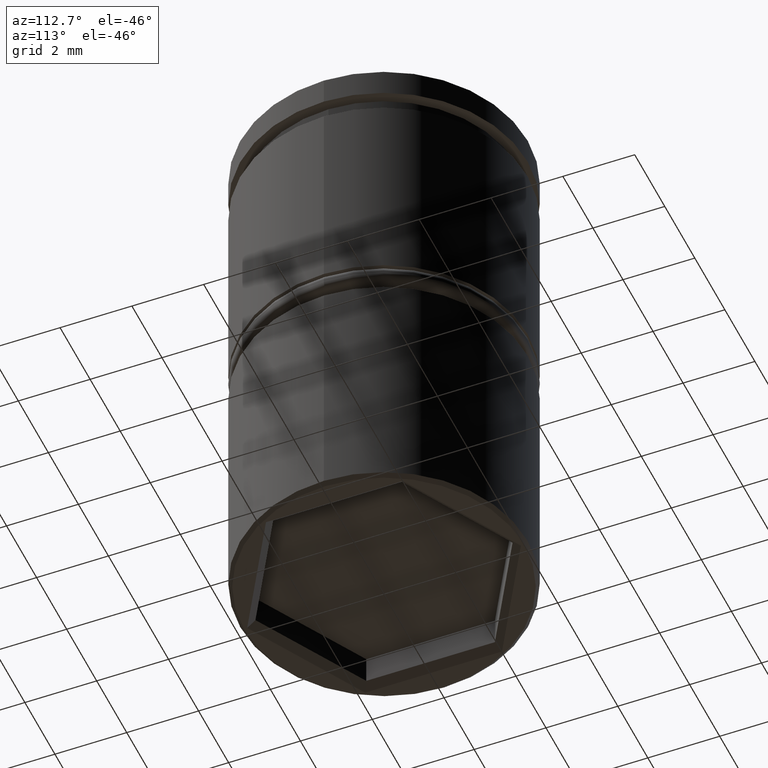
[diagram: clean part render]
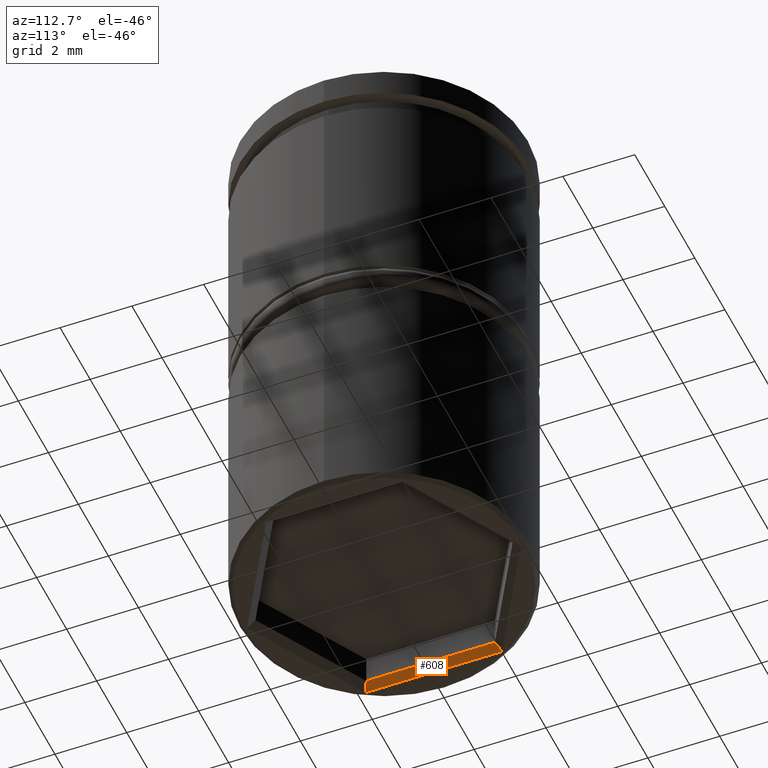
[diagram: same view with one face highlighted and labeled with its STEP entity id]
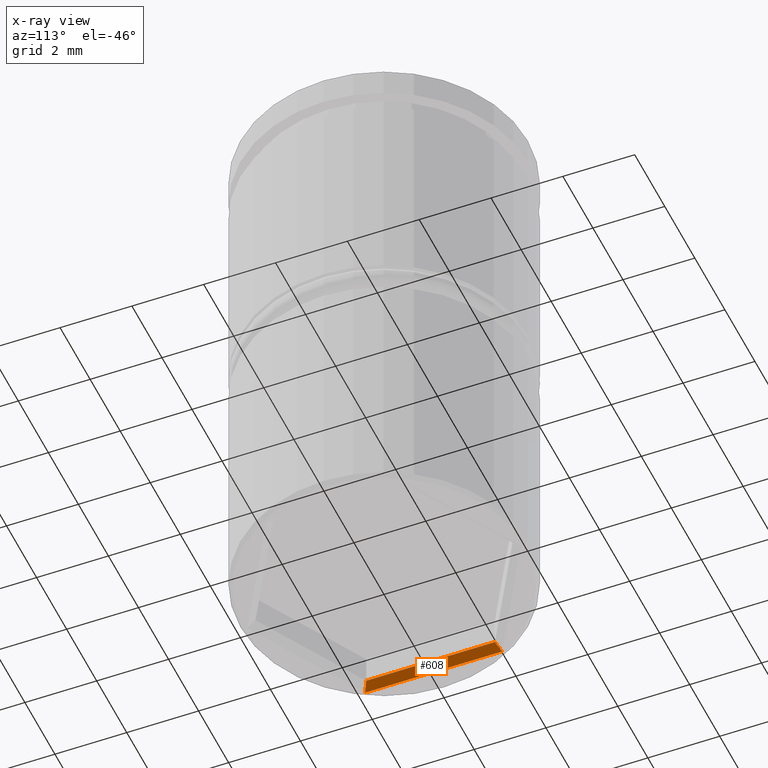
[diagram: x-ray of the same camera — body ghosted, the highlighted face saturated]
A machine part, auxiliary view. The second image highlights one B-rep face of the part: STEP entity #608.
The next image is the same camera in x-ray: the body ghosted, the highlighted face saturated — about 0% of this face is hidden behind the body in this view.
In plain terms, the highlighted planar face has unit normal (0.7071, 0, -0.7071).
Its self-contained STEP definition (entity closure, byte-faithful):
#5 = FACE_OUTER_BOUND ( 'NONE', #219, .T. ) ;
#58 = CARTESIAN_POINT ( 'NONE',  ( -2.214285714285722850, 1.278418453205605321, -13.91428571428570748 ) ) ;
#95 = ORIENTED_EDGE ( 'NONE', *, *, #917, .F. ) ;
#105 = CARTESIAN_POINT ( 'NONE',  ( -3.300000000000005151, -1.905255888325767311, -15.00000000000000000 ) ) ;
#150 = VERTEX_POINT ( 'NONE', #895 ) ;
#168 = ORIENTED_EDGE ( 'NONE', *, *, #852, .T. ) ;
#173 = DIRECTION ( 'NONE',  ( 0.000000000000000000, -1.000000000000000000, 0.000000000000000000 ) ) ;
#182 = PLANE ( 'NONE',  #638 ) ;
#212 = EDGE_CURVE ( 'NONE', #379, #150, #344, .T. ) ;
#213 = DIRECTION ( 'NONE',  ( 0.000000000000000000, -1.000000000000000000, 0.000000000000000000 ) ) ;
#214 = VECTOR ( 'NONE', #317, 1000.000000000000114 ) ;
#219 = EDGE_LOOP ( 'NONE', ( #168, #744, #95, #263 ) ) ;
#239 = CARTESIAN_POINT ( 'NONE',  ( -3.100000000000002753, 1.789785834487841676, -14.79999999999999538 ) ) ;
#241 = DIRECTION ( 'NONE',  ( 0.6546536707079748663, -0.3779644730092258653, 0.6546536707079803064 ) ) ;
#263 = ORIENTED_EDGE ( 'NONE', *, *, #279, .F. ) ;
#265 = CARTESIAN_POINT ( 'NONE',  ( -3.300000000000005151, 1.905255888325767977, -15.00000000000000000 ) ) ;
#279 = EDGE_CURVE ( 'NONE', #1091, #691, #1116, .T. ) ;
#317 = DIRECTION ( 'NONE',  ( 0.6546536707079749773, 0.3779644730092249771, 0.6546536707079805284 ) ) ;
#344 = LINE ( 'NONE', #239, #613 ) ;
#346 = CARTESIAN_POINT ( 'NONE',  ( -3.100000000000002753, -1.789785834487841232, -14.79999999999999538 ) ) ;
#379 = VERTEX_POINT ( 'NONE', #346 ) ;
#409 = CARTESIAN_POINT ( 'NONE',  ( -3.300000000000005151, -1.789785834487841232, -15.00000000000000000 ) ) ;
#608 = ADVANCED_FACE ( 'NONE', ( #5 ), #182, .T. ) ;
#613 = VECTOR ( 'NONE', #1073, 1000.000000000000000 ) ;
#638 = AXIS2_PLACEMENT_3D ( 'NONE', #734, #1090, #173 ) ;
#691 = VERTEX_POINT ( 'NONE', #105 ) ;
#707 = VECTOR ( 'NONE', #213, 1000.000000000000000 ) ;
#734 = CARTESIAN_POINT ( 'NONE',  ( -3.100000000000002753, -1.789785834487841232, -14.79999999999999538 ) ) ;
#744 = ORIENTED_EDGE ( 'NONE', *, *, #212, .F. ) ;
#776 = LINE ( 'NONE', #1132, #214 ) ;
#852 = EDGE_CURVE ( 'NONE', #1091, #150, #949, .T. ) ;
#895 = CARTESIAN_POINT ( 'NONE',  ( -3.100000000000002753, 1.789785834487841676, -14.79999999999999538 ) ) ;
#917 = EDGE_CURVE ( 'NONE', #691, #379, #776, .T. ) ;
#949 = LINE ( 'NONE', #58, #992 ) ;
#992 = VECTOR ( 'NONE', #241, 1000.000000000000000 ) ;
#1073 = DIRECTION ( 'NONE',  ( 0.000000000000000000, 1.000000000000000000, 0.000000000000000000 ) ) ;
#1090 = DIRECTION ( 'NONE',  ( 0.7071067811865505703, 0.000000000000000000, -0.7071067811865444641 ) ) ;
#1091 = VERTEX_POINT ( 'NONE', #265 ) ;
#1116 = LINE ( 'NONE', #409, #707 ) ;
#1132 = CARTESIAN_POINT ( 'NONE',  ( -2.214285714285721074, -1.278418453205605321, -13.91428571428570571 ) ) ;